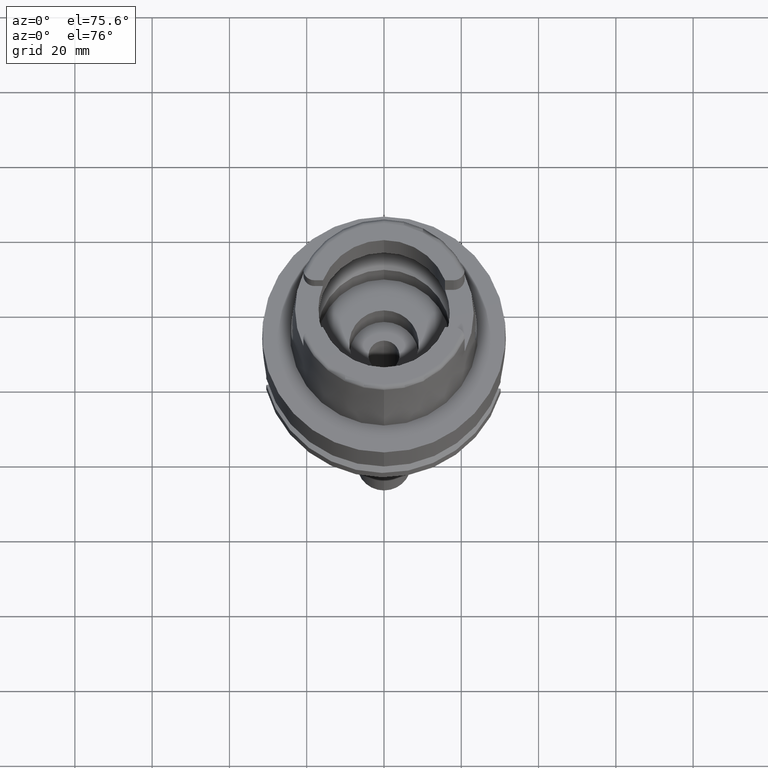
[diagram: clean part render]
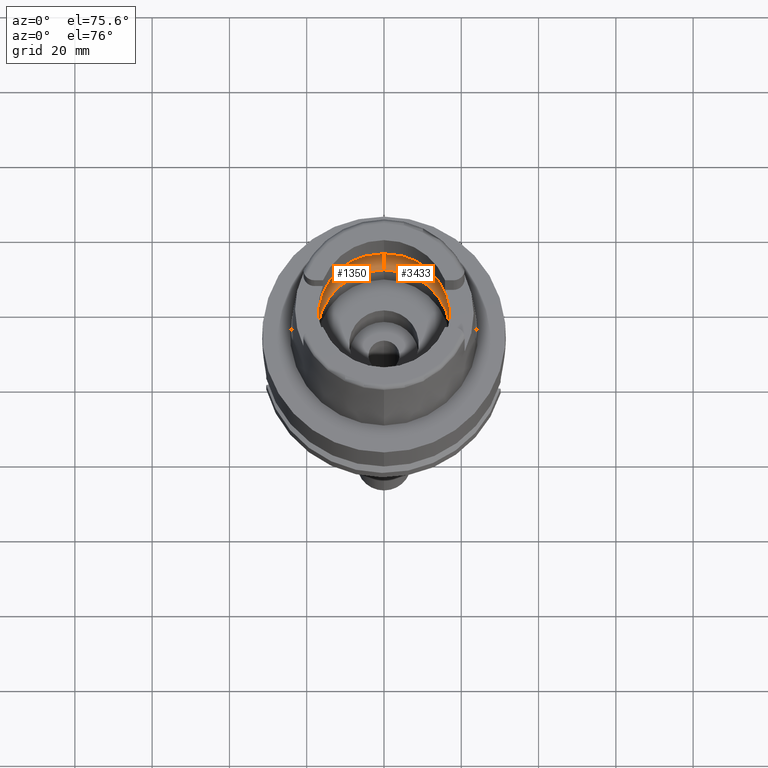
[diagram: same view with one multi-face feature highlighted, each face labeled with its STEP entity id]
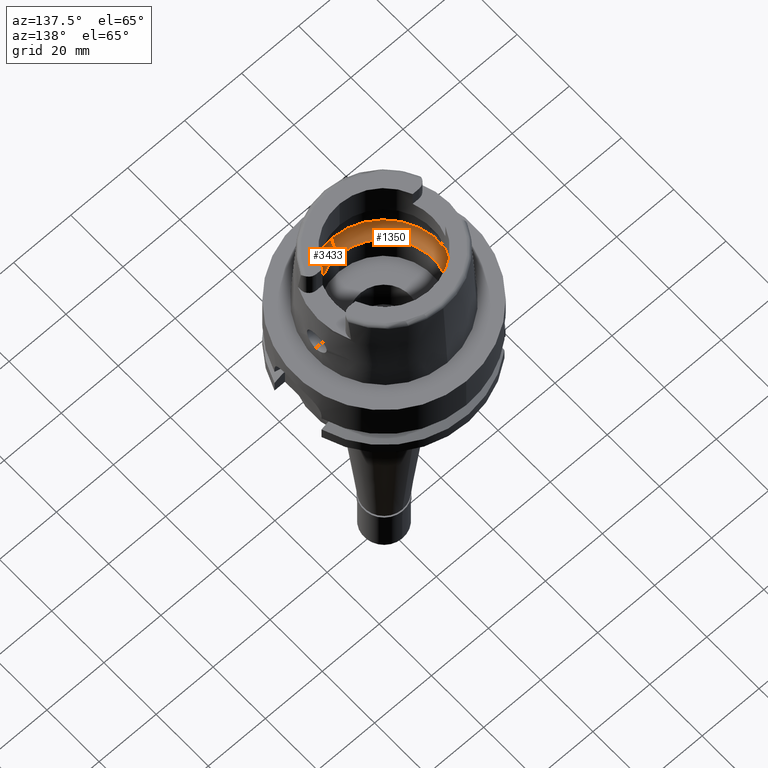
[diagram: same view with one multi-face feature highlighted, each face labeled with its STEP entity id]
A machine part, auxiliary view. The highlighted faces form ONE feature: a constant-radius fillet chain: 2 tangent blend faces with common blend radius 8 mm. The faces share edges in the B-rep.
A second angle (auxiliary view) of the same feature is appended — it is thin or edge-on in the first view.
Their STEP definitions:
[1] entity #1350 (Torus):
#37 = ORIENTED_EDGE ( 'NONE', *, *, #759, .F. ) ;
#38 = CIRCLE ( 'NONE', #4302, 20.00000000000000000 ) ;
#189 = CARTESIAN_POINT ( 'NONE',  ( -19.93856414242614505, 0.8186925878074667873, 5.338707303697814766 ) ) ;
#247 = CARTESIAN_POINT ( 'NONE',  ( -19.88331748558547574, 2.178416437691251151, 5.921431423076608525 ) ) ;
#273 = CARTESIAN_POINT ( 'NONE',  ( -19.93654847294682142, 0.9262660664361193064, 5.364596220942251747 ) ) ;
#274 = EDGE_CURVE ( 'NONE', #4439, #4095, #4764, .T. ) ;
#302 = CARTESIAN_POINT ( 'NONE',  ( -19.92546220624969067, -1.335247853971629928, 5.495766252403426755 ) ) ;
#472 = ORIENTED_EDGE ( 'NONE', *, *, #3235, .F. ) ;
#518 = ORIENTED_EDGE ( 'NONE', *, *, #3362, .F. ) ;
#759 = EDGE_CURVE ( 'NONE', #4228, #3027, #4254, .T. ) ;
#816 = AXIS2_PLACEMENT_3D ( 'NONE', #4327, #4739, #2296 ) ;
#819 = CARTESIAN_POINT ( 'NONE',  ( -19.94501428476000271, -0.4961205090554295927, 5.249999999999999112 ) ) ;
#832 = DIRECTION ( 'NONE',  ( 0.0000000000000000000, 1.000000000000000000, 0.0000000000000000000 ) ) ;
#1024 = CARTESIAN_POINT ( 'NONE',  ( -19.94501428475999916, 0.0000000000000000000, 5.250000000000000000 ) ) ;
#1068 = CARTESIAN_POINT ( 'NONE',  ( -19.93095499014167515, 1.158122409084776594, 5.432637980145680778 ) ) ;
#1079 = AXIS2_PLACEMENT_3D ( 'NONE', #3021, #3806, #4672 ) ;
#1154 = VERTEX_POINT ( 'NONE', #4133 ) ;
#1155 = DIRECTION ( 'NONE',  ( 1.000000000000000000, 0.0000000000000000000, 0.0000000000000000000 ) ) ;
#1183 = CARTESIAN_POINT ( 'NONE',  ( -19.94501428475999916, 0.0000000000000000000, 5.250000000000000000 ) ) ;
#1209 = CARTESIAN_POINT ( 'NONE',  ( 0.0000000000000000000, 12.00000000000000000, 6.186348233825000875 ) ) ;
#1251 = CARTESIAN_POINT ( 'NONE',  ( 0.0000000000000000000, -17.25000000000000000, 0.1500000000000999700 ) ) ;
#1350 = ADVANCED_FACE ( 'NONE', ( #1433 ), #3760, .F. ) ;
#1359 = ORIENTED_EDGE ( 'NONE', *, *, #3147, .T. ) ;
#1362 = DIRECTION ( 'NONE',  ( 0.0000000000000000000, 0.0000000000000000000, -1.000000000000000000 ) ) ;
#1399 = CARTESIAN_POINT ( 'NONE',  ( -19.92606541691252531, 1.317269316938268098, 5.488968411663795344 ) ) ;
#1433 = FACE_OUTER_BOUND ( 'NONE', #4699, .T. ) ;
#1511 = CARTESIAN_POINT ( 'NONE',  ( -19.84575864665999845, 2.479085262491000030, 6.186348233825000875 ) ) ;
#1589 = CARTESIAN_POINT ( 'NONE',  ( 0.0000000000000000000, -20.00000000000000000, 6.186348233825000875 ) ) ;
#1639 = CARTESIAN_POINT ( 'NONE',  ( -19.90653715571480831, -1.770134510244605108, 5.691949820981134778 ) ) ;
#1683 = ORIENTED_EDGE ( 'NONE', *, *, #5345, .F. ) ;
#1853 = CARTESIAN_POINT ( 'NONE',  ( -19.92646225184126862, 1.305232378195532172, 5.484475898738327970 ) ) ;
#1868 = CARTESIAN_POINT ( 'NONE',  ( 0.0000000000000000000, 20.00000000000000000, 6.186348233825000875 ) ) ;
#1965 = CARTESIAN_POINT ( 'NONE',  ( -19.93856411452978605, -0.9461205214874995884, 5.348254081022265183 ) ) ;
#2021 = CARTESIAN_POINT ( 'NONE',  ( 0.0000000000000000000, 17.25000000000000000, 0.1500000000000999700 ) ) ;
#2040 = CARTESIAN_POINT ( 'NONE',  ( -19.88058469725548960, -2.158465908505007302, 5.925243384237700361 ) ) ;
#2296 = DIRECTION ( 'NONE',  ( 0.0000000000000000000, -1.000000000000000000, 0.0000000000000000000 ) ) ;
#2321 = CARTESIAN_POINT ( 'NONE',  ( -19.94501428475999916, 0.0000000000000000000, 5.250000000000000000 ) ) ;
#2424 = CARTESIAN_POINT ( 'NONE',  ( -19.92390775950450887, -1.380027868490998566, 5.513103966555223501 ) ) ;
#2555 = DIRECTION ( 'NONE',  ( 0.0000000000000000000, 0.0000000000000000000, -1.000000000000000000 ) ) ;
#2846 = DIRECTION ( 'NONE',  ( 0.0000000000000000000, 0.0000000000000000000, 1.000000000000000000 ) ) ;
#2863 = ORIENTED_EDGE ( 'NONE', *, *, #274, .F. ) ;
#2895 = CARTESIAN_POINT ( 'NONE',  ( 0.0000000000000000000, 0.0000000000000000000, 0.1500000000000999700 ) ) ;
#2961 = DIRECTION ( 'NONE',  ( -0.9922879323327794543, 0.1239542631244973381, 0.0000000000000000000 ) ) ;
#3021 = CARTESIAN_POINT ( 'NONE',  ( 0.0000000000000000000, -12.00000000000000000, 6.186348233825000875 ) ) ;
#3027 = VERTEX_POINT ( 'NONE', #1511 ) ;
#3147 = EDGE_CURVE ( 'NONE', #4439, #3671, #4206, .T. ) ;
#3235 = EDGE_CURVE ( 'NONE', #1154, #4228, #4153, .T. ) ;
#3261 = CARTESIAN_POINT ( 'NONE',  ( -19.86453683997869391, -2.328760665727174217, 6.053898476926391048 ) ) ;
#3264 = VERTEX_POINT ( 'NONE', #1589 ) ;
#3288 = CARTESIAN_POINT ( 'NONE',  ( -19.84575864665999845, -2.479085262491000030, 6.186348233825000875 ) ) ;
#3362 = EDGE_CURVE ( 'NONE', #3027, #3671, #4737, .T. ) ;
#3432 = AXIS2_PLACEMENT_3D ( 'NONE', #1209, #1155, #4929 ) ;
#3483 = CARTESIAN_POINT ( 'NONE',  ( -19.94501428476000626, 0.2480393544995263821, 5.250000000000000000 ) ) ;
#3512 = CARTESIAN_POINT ( 'NONE',  ( -19.84575864665999845, 2.479085262491000030, 6.186348233825000875 ) ) ;
#3591 = CIRCLE ( 'NONE', #1079, 7.999999999999992895 ) ;
#3593 = CARTESIAN_POINT ( 'NONE',  ( -19.92517005465364832, -1.343825724865722826, 5.499044007117740662 ) ) ;
#3671 = VERTEX_POINT ( 'NONE', #1868 ) ;
#3702 = CARTESIAN_POINT ( 'NONE',  ( -19.90056097910783350, -1.871180122140711832, 5.748256501260659235 ) ) ;
#3718 = EDGE_CURVE ( 'NONE', #3264, #1154, #38, .T. ) ;
#3760 = TOROIDAL_SURFACE ( 'NONE', #816, 12.00000000000000000, 8.000000000000000000 ) ;
#3806 = DIRECTION ( 'NONE',  ( -1.000000000000000000, 0.0000000000000000000, 0.0000000000000000000 ) ) ;
#3826 = CARTESIAN_POINT ( 'NONE',  ( 0.0000000000000000000, 0.0000000000000000000, 6.186348233825000875 ) ) ;
#3884 = CARTESIAN_POINT ( 'NONE',  ( -19.92705278000904201, 1.287130048446155195, 5.477772474801050784 ) ) ;
#3902 = DIRECTION ( 'NONE',  ( 0.0000000000000000000, -1.000000000000000000, 0.0000000000000000000 ) ) ;
#3911 = CARTESIAN_POINT ( 'NONE',  ( -19.92839760948977812, 1.244563320345950075, 5.462382395228348564 ) ) ;
#3937 = CARTESIAN_POINT ( 'NONE',  ( -19.93292026788402893, 1.081805184546935639, 5.409024518554605976 ) ) ;
#3990 = CARTESIAN_POINT ( 'NONE',  ( -19.90995255595161950, 1.795933884455202412, 5.670404923157653876 ) ) ;
#4016 = CARTESIAN_POINT ( 'NONE',  ( -19.92207708731347893, -1.430235645114746657, 5.533216160818565932 ) ) ;
#4095 = VERTEX_POINT ( 'NONE', #1251 ) ;
#4133 = CARTESIAN_POINT ( 'NONE',  ( -19.84575864665999845, -2.479085262491000030, 6.186348233825000875 ) ) ;
#4153 = B_SPLINE_CURVE_WITH_KNOTS ( 'NONE', 3,
 ( #3288, #3261, #2040, #3702, #1639, #5325, #4428, #4016, #2424, #5348, #3593, #302, #1965, #819, #1183 ),
 .UNSPECIFIED., .F., .F.,
 ( 4, 2, 2, 1, 1, 1, 2, 2, 4 ),
 ( 0.0000000000000000000, 0.2499999999999940603, 0.3749999999999913958, 0.4374999999999901745, 0.4687499999999893974, 0.4843749999999892863, 0.4921874999999890643, 0.4999999999999888978, 1.000000000000000000 ),
 .UNSPECIFIED. ) ;
#4206 = CIRCLE ( 'NONE', #3432, 7.999999999999992895 ) ;
#4228 = VERTEX_POINT ( 'NONE', #1024 ) ;
#4254 = B_SPLINE_CURVE_WITH_KNOTS ( 'NONE', 3,
 ( #2321, #3483, #4816, #189, #273, #3937, #1068, #3911, #3884, #1853, #1399, #4701, #3990, #247, #3512 ),
 .UNSPECIFIED., .F., .F.,
 ( 4, 2, 2, 1, 1, 1, 2, 2, 4 ),
 ( 0.0000000000000000000, 0.2500000000000007772, 0.3750000000000011657, 0.4375000000000012768, 0.4687500000000011657, 0.4843750000000013878, 0.4921875000000016098, 0.5000000000000017764, 1.000000000000000000 ),
 .UNSPECIFIED. ) ;
#4302 = AXIS2_PLACEMENT_3D ( 'NONE', #4747, #1362, #3902 ) ;
#4327 = CARTESIAN_POINT ( 'NONE',  ( 0.0000000000000000000, 0.0000000000000000000, 6.186348233825000875 ) ) ;
#4428 = CARTESIAN_POINT ( 'NONE',  ( -19.91819177005301000, -1.528964289322749304, 5.574905501562627208 ) ) ;
#4439 = VERTEX_POINT ( 'NONE', #2021 ) ;
#4672 = DIRECTION ( 'NONE',  ( 0.0000000000000000000, -0.6562500000000006661, -0.7545435292281016393 ) ) ;
#4699 = EDGE_LOOP ( 'NONE', ( #5123, #1683, #2863, #1359, #518, #37, #472 ) ) ;
#4701 = CARTESIAN_POINT ( 'NONE',  ( -19.92590934684917769, 1.321967521133579959, 5.490731887689828561 ) ) ;
#4737 = CIRCLE ( 'NONE', #5185, 20.00000000000001421 ) ;
#4739 = DIRECTION ( 'NONE',  ( 0.0000000000000000000, 0.0000000000000000000, -1.000000000000000000 ) ) ;
#4747 = CARTESIAN_POINT ( 'NONE',  ( 0.0000000000000000000, 0.0000000000000000000, 6.186348233825000875 ) ) ;
#4764 = CIRCLE ( 'NONE', #5220, 17.25000000000000000 ) ;
#4816 = CARTESIAN_POINT ( 'NONE',  ( -19.94340174917653741, 0.4850934172103648079, 5.274617949540537865 ) ) ;
#4929 = DIRECTION ( 'NONE',  ( 0.0000000000000000000, 0.6562500000000006661, -0.7545435292281016393 ) ) ;
#5123 = ORIENTED_EDGE ( 'NONE', *, *, #3718, .F. ) ;
#5185 = AXIS2_PLACEMENT_3D ( 'NONE', #3826, #2555, #2961 ) ;
#5220 = AXIS2_PLACEMENT_3D ( 'NONE', #2895, #2846, #832 ) ;
#5325 = CARTESIAN_POINT ( 'NONE',  ( -19.91447754460956077, -1.610668511863758923, 5.613000592307845871 ) ) ;
#5345 = EDGE_CURVE ( 'NONE', #4095, #3264, #3591, .T. ) ;
#5348 = CARTESIAN_POINT ( 'NONE',  ( -19.92466833620654043, -1.358330481555000357, 5.504646120092036021 ) ) ;
[2] entity #3433 (Torus):
#31 = CARTESIAN_POINT ( 'NONE',  ( 19.84575864665999845, 2.479085262491000030, 6.186348233825000875 ) ) ;
#78 = DIRECTION ( 'NONE',  ( 0.0000000000000000000, 0.0000000000000000000, -1.000000000000000000 ) ) ;
#157 = DIRECTION ( 'NONE',  ( 0.0000000000000000000, 0.0000000000000000000, -1.000000000000000000 ) ) ;
#163 = DIRECTION ( 'NONE',  ( 0.9922879323327794543, -0.1239542631244973381, 0.0000000000000000000 ) ) ;
#249 = CARTESIAN_POINT ( 'NONE',  ( 0.0000000000000000000, 0.0000000000000000000, 6.186348233825000875 ) ) ;
#395 = CIRCLE ( 'NONE', #5280, 20.00000000000001421 ) ;
#482 = B_SPLINE_CURVE_WITH_KNOTS ( 'NONE', 3,
 ( #4161, #583, #3091, #3818, #1467, #2623, #2250, #1863, #970, #4268, #3921, #552, #2223, #3491, #3118 ),
 .UNSPECIFIED., .F., .F.,
 ( 4, 2, 2, 1, 1, 1, 2, 2, 4 ),
 ( 0.0000000000000000000, 0.2499999999999971134, 0.3749999999999956701, 0.4374999999999947820, 0.4687499999999943934, 0.4843749999999941713, 0.4921874999999942268, 0.4999999999999942268, 1.000000000000000000 ),
 .UNSPECIFIED. ) ;
#552 = CARTESIAN_POINT ( 'NONE',  ( 19.92590906856742095, -1.321975393417672562, 5.490734853362547518 ) ) ;
#583 = CARTESIAN_POINT ( 'NONE',  ( 19.94501428475999916, -0.2480409057135617157, 5.249999999999999112 ) ) ;
#640 = CARTESIAN_POINT ( 'NONE',  ( 19.91447782635634312, 1.610662747255747096, 5.612997844306910622 ) ) ;
#791 = ORIENTED_EDGE ( 'NONE', *, *, #5345, .T. ) ;
#810 = AXIS2_PLACEMENT_3D ( 'NONE', #1605, #78, #2004 ) ;
#970 = CARTESIAN_POINT ( 'NONE',  ( 19.92705252129803029, -1.287137646737845031, 5.477775250961266273 ) ) ;
#973 = CARTESIAN_POINT ( 'NONE',  ( 19.91819205508162227, 1.528957928135066258, 5.574902649514004160 ) ) ;
#1079 = AXIS2_PLACEMENT_3D ( 'NONE', #3021, #3806, #4672 ) ;
#1086 = CARTESIAN_POINT ( 'NONE',  ( 19.92466861724970784, 1.358322854824430825, 5.504643156161263207 ) ) ;
#1155 = DIRECTION ( 'NONE',  ( 1.000000000000000000, 0.0000000000000000000, 0.0000000000000000000 ) ) ;
#1209 = CARTESIAN_POINT ( 'NONE',  ( 0.0000000000000000000, 12.00000000000000000, 6.186348233825000875 ) ) ;
#1251 = CARTESIAN_POINT ( 'NONE',  ( 0.0000000000000000000, -17.25000000000000000, 0.1500000000000999700 ) ) ;
#1467 = CARTESIAN_POINT ( 'NONE',  ( 19.93654835100833367, -0.9262716854700766556, 5.364597633124620124 ) ) ;
#1589 = CARTESIAN_POINT ( 'NONE',  ( 0.0000000000000000000, -20.00000000000000000, 6.186348233825000875 ) ) ;
#1605 = CARTESIAN_POINT ( 'NONE',  ( 0.0000000000000000000, 0.0000000000000000000, 6.186348233825000875 ) ) ;
#1664 = ORIENTED_EDGE ( 'NONE', *, *, #4150, .F. ) ;
#1863 = CARTESIAN_POINT ( 'NONE',  ( 19.92839737014920942, -1.244570694252780774, 5.462384987428333893 ) ) ;
#1866 = CARTESIAN_POINT ( 'NONE',  ( 19.92517033494361556, 1.343817989893349107, 5.499041037980064495 ) ) ;
#1868 = CARTESIAN_POINT ( 'NONE',  ( 0.0000000000000000000, 20.00000000000000000, 6.186348233825000875 ) ) ;
#1919 = CARTESIAN_POINT ( 'NONE',  ( 19.92390804158881323, 1.380020403548397390, 5.513101011326238421 ) ) ;
#2002 = VERTEX_POINT ( 'NONE', #31 ) ;
#2004 = DIRECTION ( 'NONE',  ( 0.0000000000000000000, 1.000000000000000000, 0.0000000000000000000 ) ) ;
#2016 = EDGE_CURVE ( 'NONE', #2002, #3416, #5252, .T. ) ;
#2021 = CARTESIAN_POINT ( 'NONE',  ( 0.0000000000000000000, 17.25000000000000000, 0.1500000000000999700 ) ) ;
#2128 = VERTEX_POINT ( 'NONE', #4032 ) ;
#2136 = DIRECTION ( 'NONE',  ( 0.0000000000000000000, 0.0000000000000000000, 1.000000000000000000 ) ) ;
#2223 = CARTESIAN_POINT ( 'NONE',  ( 19.90995224940876440, -1.795938227366687956, 5.670407759492696265 ) ) ;
#2250 = CARTESIAN_POINT ( 'NONE',  ( 19.93095478763670059, -1.158129320215844471, 5.432640215619307433 ) ) ;
#2266 = DIRECTION ( 'NONE',  ( 0.0000000000000000000, 0.0000000000000000000, -1.000000000000000000 ) ) ;
#2277 = CARTESIAN_POINT ( 'NONE',  ( 19.92546248860872282, 1.335239979097143204, 5.495763251854120846 ) ) ;
#2588 = EDGE_LOOP ( 'NONE', ( #4820, #4306, #5397, #1664, #791, #4432, #4137 ) ) ;
#2623 = CARTESIAN_POINT ( 'NONE',  ( 19.93292009368619233, -1.081811675228320446, 5.409026468986946057 ) ) ;
#2689 = CARTESIAN_POINT ( 'NONE',  ( 19.93856420767916404, 0.9461146673045343070, 5.348252842016403719 ) ) ;
#2713 = CARTESIAN_POINT ( 'NONE',  ( 19.86453694707040185, 2.328759808428484401, 6.053897721567618184 ) ) ;
#2718 = CARTESIAN_POINT ( 'NONE',  ( 19.94501428475999916, 0.0000000000000000000, 5.250000000000000000 ) ) ;
#3021 = CARTESIAN_POINT ( 'NONE',  ( 0.0000000000000000000, -12.00000000000000000, 6.186348233825000875 ) ) ;
#3047 = EDGE_CURVE ( 'NONE', #2128, #3264, #395, .T. ) ;
#3091 = CARTESIAN_POINT ( 'NONE',  ( 19.94340172595015659, -0.4850964367992487425, 5.274618258021613215 ) ) ;
#3092 = TOROIDAL_SURFACE ( 'NONE', #4296, 12.00000000000000000, 8.000000000000000000 ) ;
#3118 = CARTESIAN_POINT ( 'NONE',  ( 19.84575864665999845, -2.479085262491000030, 6.186348233825000875 ) ) ;
#3143 = CARTESIAN_POINT ( 'NONE',  ( 19.88058488118039335, 2.158463974044561251, 5.925241923970850699 ) ) ;
#3147 = EDGE_CURVE ( 'NONE', #4439, #3671, #4206, .T. ) ;
#3264 = VERTEX_POINT ( 'NONE', #1589 ) ;
#3416 = VERTEX_POINT ( 'NONE', #2718 ) ;
#3432 = AXIS2_PLACEMENT_3D ( 'NONE', #1209, #1155, #4929 ) ;
#3433 = ADVANCED_FACE ( 'NONE', ( #3879 ), #3092, .F. ) ;
#3442 = AXIS2_PLACEMENT_3D ( 'NONE', #4577, #2136, #3793 ) ;
#3491 = CARTESIAN_POINT ( 'NONE',  ( 19.88331727194812970, -2.178418147904316093, 5.921432929931170541 ) ) ;
#3591 = CIRCLE ( 'NONE', #1079, 7.999999999999992895 ) ;
#3671 = VERTEX_POINT ( 'NONE', #1868 ) ;
#3793 = DIRECTION ( 'NONE',  ( 0.0000000000000000000, -1.000000000000000000, 0.0000000000000000000 ) ) ;
#3806 = DIRECTION ( 'NONE',  ( -1.000000000000000000, 0.0000000000000000000, 0.0000000000000000000 ) ) ;
#3818 = CARTESIAN_POINT ( 'NONE',  ( 19.93856404952062178, -0.8186975845892452419, 5.338708399471156163 ) ) ;
#3879 = FACE_OUTER_BOUND ( 'NONE', #2588, .T. ) ;
#3921 = CARTESIAN_POINT ( 'NONE',  ( 19.92606514397988704, -1.317277072657893289, 5.488971321394587655 ) ) ;
#4032 = CARTESIAN_POINT ( 'NONE',  ( 19.84575864665999845, -2.479085262491000030, 6.186348233825000875 ) ) ;
#4095 = VERTEX_POINT ( 'NONE', #1251 ) ;
#4137 = ORIENTED_EDGE ( 'NONE', *, *, #4181, .F. ) ;
#4150 = EDGE_CURVE ( 'NONE', #4095, #4439, #5101, .T. ) ;
#4161 = CARTESIAN_POINT ( 'NONE',  ( 19.94501428475999916, 0.0000000000000000000, 5.250000000000000000 ) ) ;
#4175 = CIRCLE ( 'NONE', #810, 20.00000000000000000 ) ;
#4181 = EDGE_CURVE ( 'NONE', #3416, #2128, #482, .T. ) ;
#4206 = CIRCLE ( 'NONE', #3432, 7.999999999999992895 ) ;
#4268 = CARTESIAN_POINT ( 'NONE',  ( 19.92646198462450258, -1.305240071145259417, 5.484478754890461438 ) ) ;
#4283 = CARTESIAN_POINT ( 'NONE',  ( 0.0000000000000000000, 0.0000000000000000000, 6.186348233825000875 ) ) ;
#4296 = AXIS2_PLACEMENT_3D ( 'NONE', #4283, #157, #5122 ) ;
#4306 = ORIENTED_EDGE ( 'NONE', *, *, #4947, .F. ) ;
#4308 = CARTESIAN_POINT ( 'NONE',  ( 19.84575864665999845, 2.479085262491000030, 6.186348233825000875 ) ) ;
#4359 = CARTESIAN_POINT ( 'NONE',  ( 19.94501428475999916, 0.0000000000000000000, 5.250000000000000000 ) ) ;
#4432 = ORIENTED_EDGE ( 'NONE', *, *, #3047, .F. ) ;
#4439 = VERTEX_POINT ( 'NONE', #2021 ) ;
#4577 = CARTESIAN_POINT ( 'NONE',  ( 0.0000000000000000000, 0.0000000000000000000, 0.1500000000000999700 ) ) ;
#4672 = DIRECTION ( 'NONE',  ( 0.0000000000000000000, -0.6562500000000006661, -0.7545435292281016393 ) ) ;
#4715 = CARTESIAN_POINT ( 'NONE',  ( 19.90056123289476275, 1.871176222328685412, 5.748254232980315237 ) ) ;
#4746 = CARTESIAN_POINT ( 'NONE',  ( 19.90653742522446379, 1.770129897597210178, 5.691947325404154157 ) ) ;
#4820 = ORIENTED_EDGE ( 'NONE', *, *, #2016, .F. ) ;
#4929 = DIRECTION ( 'NONE',  ( 0.0000000000000000000, 0.6562500000000006661, -0.7545435292281016393 ) ) ;
#4947 = EDGE_CURVE ( 'NONE', #3671, #2002, #4175, .T. ) ;
#5101 = CIRCLE ( 'NONE', #3442, 17.25000000000000000 ) ;
#5122 = DIRECTION ( 'NONE',  ( 0.0000000000000000000, -1.000000000000000000, 0.0000000000000000000 ) ) ;
#5138 = CARTESIAN_POINT ( 'NONE',  ( 19.94501428475999560, 0.4961173919640057828, 5.249999999999999112 ) ) ;
#5202 = CARTESIAN_POINT ( 'NONE',  ( 19.92207737120660838, 1.430228553613144271, 5.533213232039442708 ) ) ;
#5252 = B_SPLINE_CURVE_WITH_KNOTS ( 'NONE', 3,
 ( #4308, #2713, #3143, #4715, #4746, #640, #973, #5202, #1919, #1086, #1866, #2277, #2689, #5138, #4359 ),
 .UNSPECIFIED., .F., .F.,
 ( 4, 2, 2, 1, 1, 1, 2, 2, 4 ),
 ( 0.0000000000000000000, 0.2499999999999997780, 0.3749999999999993339, 0.4374999999999993894, 0.4687499999999993339, 0.4843749999999992228, 0.4921874999999992228, 0.4999999999999992228, 1.000000000000000000 ),
 .UNSPECIFIED. ) ;
#5280 = AXIS2_PLACEMENT_3D ( 'NONE', #249, #2266, #163 ) ;
#5345 = EDGE_CURVE ( 'NONE', #4095, #3264, #3591, .T. ) ;
#5397 = ORIENTED_EDGE ( 'NONE', *, *, #3147, .F. ) ;